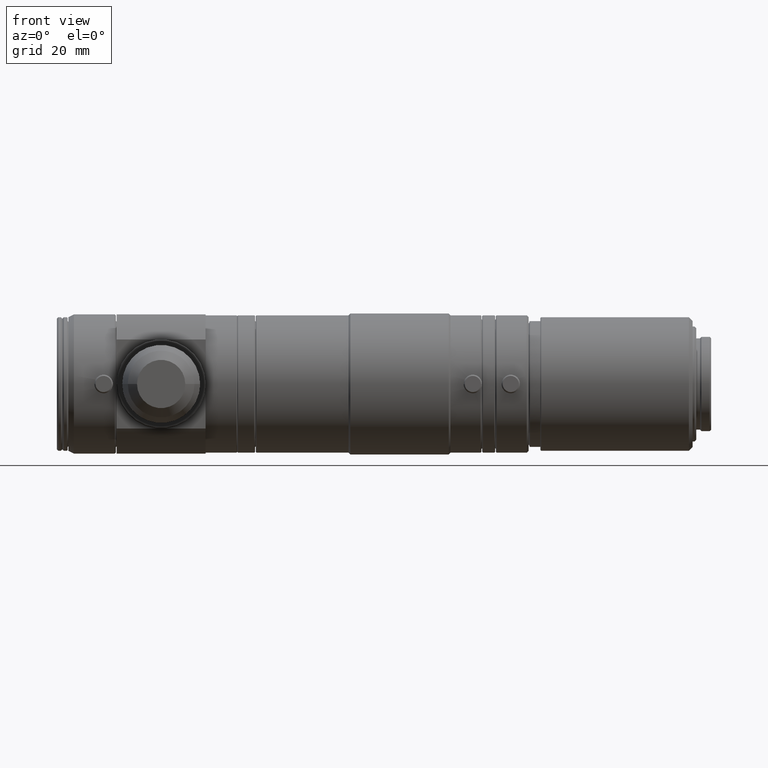
[diagram: clean part render]
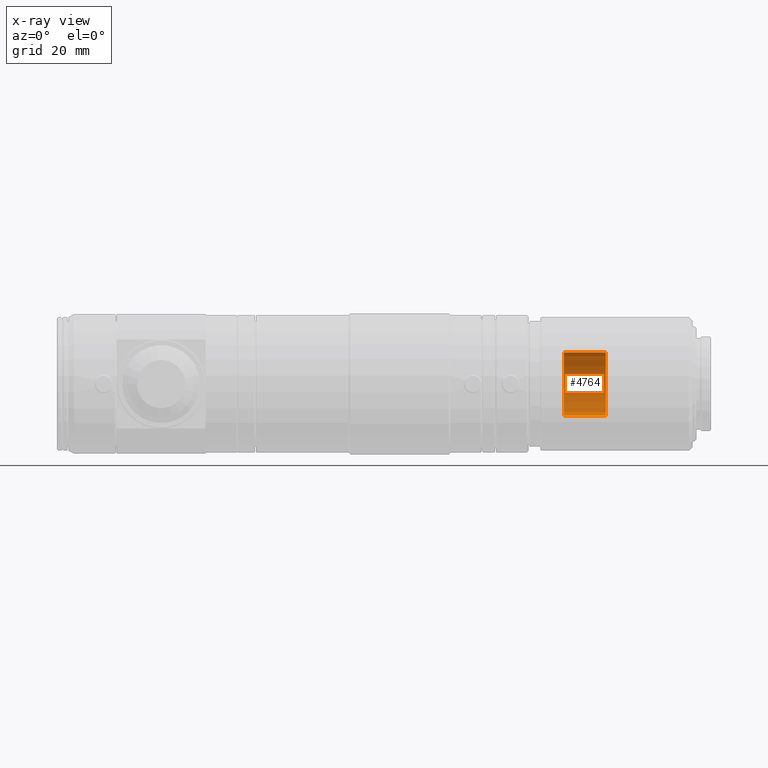
[diagram: x-ray — body ghosted, one internal face saturated and labeled with its STEP entity id]
A machine part, front view, then the same camera in x-ray: the body is ghosted and one INTERNAL B-rep face — a face not visible from any outside direction — is saturated and labeled: STEP entity #4764.
In plain terms, the highlighted cylindrical surface (edge-blend (fillet) strip) has radius 8.5 mm, axis along (-1, -0, -0).
Its self-contained STEP definition (entity closure, byte-faithful):
#18 = DIRECTION ( 'NONE',  ( 0.0000000000000000000, 0.0000000000000000000, 1.000000000000000000 ) ) ;
#94 = CYLINDRICAL_SURFACE ( 'NONE', #6611, 8.500000000000126100 ) ;
#913 = VERTEX_POINT ( 'NONE', #2835 ) ;
#950 = DIRECTION ( 'NONE',  ( -1.000000000000000000, -0.0000000000000000000, -0.0000000000000000000 ) ) ;
#1379 = CARTESIAN_POINT ( 'NONE',  ( 136.6309746333472200, 0.0000000000000000000, 0.0000000000000000000 ) ) ;
#1442 = ORIENTED_EDGE ( 'NONE', *, *, #8050, .T. ) ;
#1540 = VERTEX_POINT ( 'NONE', #4984 ) ;
#1790 = CARTESIAN_POINT ( 'NONE',  ( 8.060974633347258900, 1.040949779275265700E-015, -8.500000000000126100 ) ) ;
#2002 = DIRECTION ( 'NONE',  ( 0.0000000000000000000, 0.0000000000000000000, 1.000000000000000000 ) ) ;
#2374 = VERTEX_POINT ( 'NONE', #6003 ) ;
#2448 = VERTEX_POINT ( 'NONE', #5439 ) ;
#2525 = LINE ( 'NONE', #4213, #6725 ) ;
#2835 = CARTESIAN_POINT ( 'NONE',  ( 136.6309746333472200, 1.040949779275265700E-015, -8.500000000000126100 ) ) ;
#3176 = EDGE_LOOP ( 'NONE', ( #3245, #1442, #6568, #6882 ) ) ;
#3245 = ORIENTED_EDGE ( 'NONE', *, *, #6139, .T. ) ;
#3666 = LINE ( 'NONE', #1790, #4940 ) ;
#3741 = DIRECTION ( 'NONE',  ( -1.000000000000000000, -0.0000000000000000000, -0.0000000000000000000 ) ) ;
#4213 = CARTESIAN_POINT ( 'NONE',  ( 8.060974633347258900, 0.0000000000000000000, 8.500000000000126100 ) ) ;
#4330 = EDGE_CURVE ( 'NONE', #2374, #1540, #2525, .T. ) ;
#4429 = AXIS2_PLACEMENT_3D ( 'NONE', #7477, #3741, #18 ) ;
#4730 = CARTESIAN_POINT ( 'NONE',  ( 8.060974633347258900, 0.0000000000000000000, 0.0000000000000000000 ) ) ;
#4764 = ADVANCED_FACE ( 'NONE', ( #6715 ), #94, .T. ) ;
#4940 = VECTOR ( 'NONE', #6147, 1000.000000000000000 ) ;
#4984 = CARTESIAN_POINT ( 'NONE',  ( 136.6309746333472200, 0.0000000000000000000, 8.500000000000126100 ) ) ;
#5439 = CARTESIAN_POINT ( 'NONE',  ( 147.9309746333472300, 1.040949779275265700E-015, -8.500000000000126100 ) ) ;
#5758 = DIRECTION ( 'NONE',  ( -1.000000000000000000, -0.0000000000000000000, -0.0000000000000000000 ) ) ;
#6003 = CARTESIAN_POINT ( 'NONE',  ( 147.9309746333472300, 0.0000000000000000000, 8.500000000000126100 ) ) ;
#6104 = DIRECTION ( 'NONE',  ( -1.000000000000000000, -0.0000000000000000000, -0.0000000000000000000 ) ) ;
#6139 = EDGE_CURVE ( 'NONE', #2374, #2448, #7026, .T. ) ;
#6147 = DIRECTION ( 'NONE',  ( -1.000000000000000000, -0.0000000000000000000, -0.0000000000000000000 ) ) ;
#6568 = ORIENTED_EDGE ( 'NONE', *, *, #6717, .F. ) ;
#6611 = AXIS2_PLACEMENT_3D ( 'NONE', #4730, #950, #7848 ) ;
#6715 = FACE_OUTER_BOUND ( 'NONE', #3176, .T. ) ;
#6717 = EDGE_CURVE ( 'NONE', #1540, #913, #8095, .T. ) ;
#6725 = VECTOR ( 'NONE', #6104, 1000.000000000000000 ) ;
#6882 = ORIENTED_EDGE ( 'NONE', *, *, #4330, .F. ) ;
#6960 = AXIS2_PLACEMENT_3D ( 'NONE', #1379, #5758, #2002 ) ;
#7026 = CIRCLE ( 'NONE', #4429, 8.500000000000126100 ) ;
#7477 = CARTESIAN_POINT ( 'NONE',  ( 147.9309746333472300, 0.0000000000000000000, 0.0000000000000000000 ) ) ;
#7848 = DIRECTION ( 'NONE',  ( 0.0000000000000000000, 0.0000000000000000000, 1.000000000000000000 ) ) ;
#8050 = EDGE_CURVE ( 'NONE', #2448, #913, #3666, .T. ) ;
#8095 = CIRCLE ( 'NONE', #6960, 8.500000000000126100 ) ;